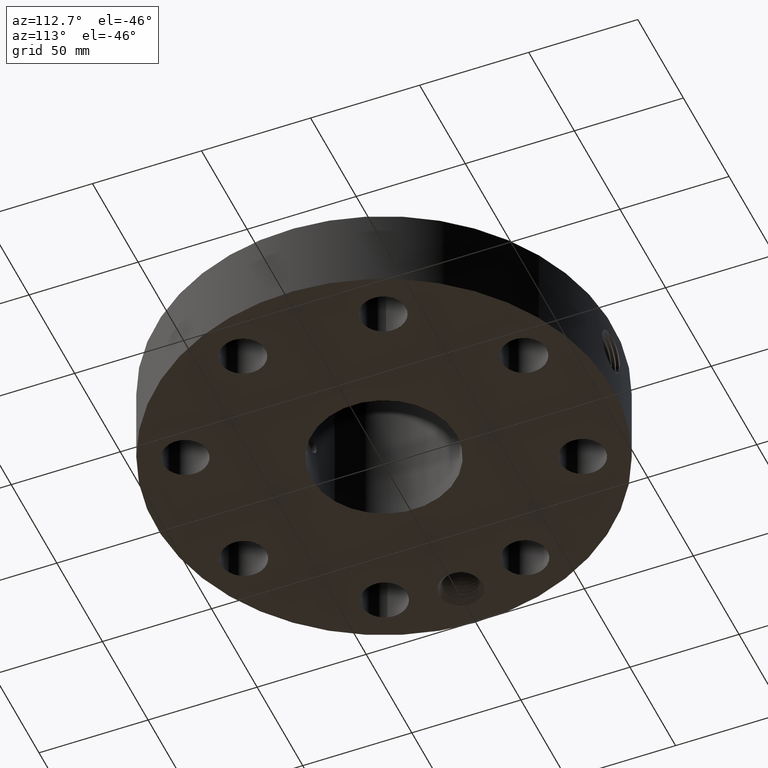
[diagram: clean part render]
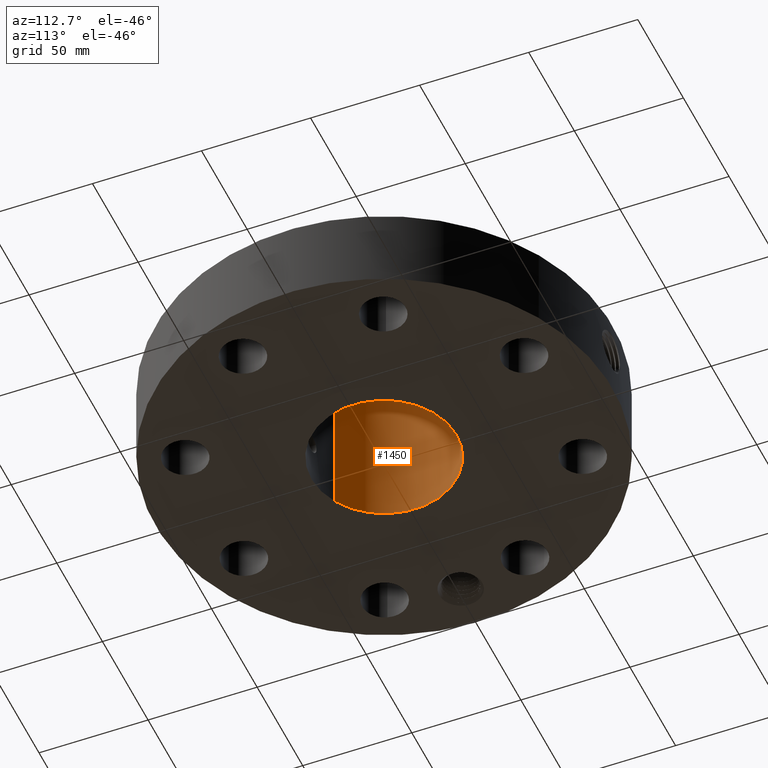
[diagram: same view with one face highlighted and labeled with its STEP entity id]
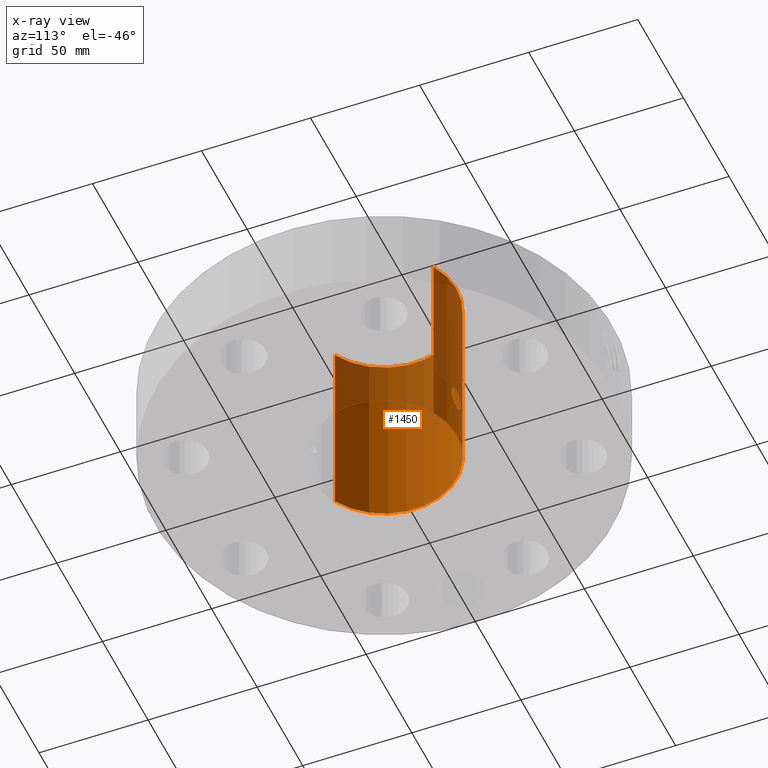
[diagram: x-ray of the same camera — body ghosted, the highlighted face saturated]
A machine part, auxiliary view. The second image highlights one B-rep face of the part: STEP entity #1450.
The next image is the same camera in x-ray: the body ghosted, the highlighted face saturated — about 35% of this face is hidden behind the body in this view.
In plain terms, the highlighted cylindrical surface (partial cylindrical patch) has radius 33.3248 mm, axis along (0, 0, -1).
Its self-contained STEP definition (entity closure, byte-faithful):
#251=AXIS2_PLACEMENT_3D('Circle Axis2P3D',#249,#250,$) ;
#1327=AXIS2_PLACEMENT_3D('Cylinder Axis2P3D',#1324,#1325,#1326) ;
#1399=AXIS2_PLACEMENT_3D('Circle Axis2P3D',#1397,#1398,$) ;
#244=CARTESIAN_POINT('Vertex',(0.629006306651,1.1513883212,0.0600000000002)) ;
#246=CARTESIAN_POINT('Vertex',(-0.629006306651,-1.1513883212,0.0600000000002)) ;
#249=CARTESIAN_POINT('Axis2P3D Location',(0.,0.,0.0600000000002)) ;
#1324=CARTESIAN_POINT('Axis2P3D Location',(0.,0.,1.81000000001)) ;
#1333=CARTESIAN_POINT('Vertex',(0.629006306651,1.1513883212,3.56000000001)) ;
#1335=CARTESIAN_POINT('Vertex',(-0.629006306651,-1.1513883212,3.56000000001)) ;
#1338=CARTESIAN_POINT('Line Origine',(0.629006306651,1.1513883212,1.81000000001)) ;
#1343=CARTESIAN_POINT('Line Origine',(-0.629006306651,-1.1513883212,1.81000000001)) ;
#1397=CARTESIAN_POINT('Axis2P3D Location',(0.,0.,3.56000000001)) ;
#1409=CARTESIAN_POINT('Control Point',(0.16674068676,1.3013614192,1.03109085234)) ;
#1410=CARTESIAN_POINT('Control Point',(0.155854090366,1.30275629578,1.05101863337)) ;
#1411=CARTESIAN_POINT('Control Point',(0.141998251544,1.30441590584,1.06930575102)) ;
#1412=CARTESIAN_POINT('Control Point',(0.125495833428,1.30617306159,1.08537694589)) ;
#1413=CARTESIAN_POINT('Control Point',(0.0789659109696,1.31022969843,1.11872717991)) ;
#1414=CARTESIAN_POINT('Control Point',(0.0227116709111,1.31249113031,1.1333278499)) ;
#1415=CARTESIAN_POINT('Control Point',(-0.0125163085587,1.31264129171,1.13425774414)) ;
#1416=CARTESIAN_POINT('Control Point',(-0.0865714824942,1.31024752775,1.11913770544)) ;
#1417=CARTESIAN_POINT('Control Point',(-0.145860306458,1.3043975898,1.07149476751)) ;
#1418=CARTESIAN_POINT('Control Point',(-0.170291354138,1.30102131544,1.0378722166)) ;
#1419=CARTESIAN_POINT('Control Point',(-0.193186261976,1.29771600406,0.977199958409)) ;
#1420=CARTESIAN_POINT('Control Point',(-0.190308363571,1.29811934656,0.913761782618)) ;
#1421=CARTESIAN_POINT('Control Point',(-0.185714093268,1.29881219227,0.890868149216)) ;
#1422=CARTESIAN_POINT('Control Point',(-0.177744038941,1.29995158296,0.869050648734)) ;
#1423=CARTESIAN_POINT('Control Point',(-0.16674068676,1.3013614192,0.848909147669)) ;
#1424=CARTESIAN_POINT('Vertex',(0.16674068676,1.3013614192,1.03109085234)) ;
#1426=CARTESIAN_POINT('Vertex',(-0.16674068676,1.3013614192,0.848909147669)) ;
#1430=CARTESIAN_POINT('Control Point',(-0.16674068676,1.3013614192,0.848909147669)) ;
#1431=CARTESIAN_POINT('Control Point',(-0.155854090361,1.30275629578,0.82898136663)) ;
#1432=CARTESIAN_POINT('Control Point',(-0.141998251531,1.30441590584,0.81069424897)) ;
#1433=CARTESIAN_POINT('Control Point',(-0.125495833445,1.30617306159,0.794623054127)) ;
#1434=CARTESIAN_POINT('Control Point',(-0.0789659109802,1.31022969843,0.761272820105)) ;
#1435=CARTESIAN_POINT('Control Point',(-0.0227116709128,1.31249113031,0.746672150112)) ;
#1436=CARTESIAN_POINT('Control Point',(0.0125163085635,1.31264129171,0.745742255865)) ;
#1437=CARTESIAN_POINT('Control Point',(0.0865714825119,1.31024752775,0.760862294574)) ;
#1438=CARTESIAN_POINT('Control Point',(0.145860306483,1.3043975898,0.808505232518)) ;
#1439=CARTESIAN_POINT('Control Point',(0.170291354128,1.30102131544,0.842127783376)) ;
#1440=CARTESIAN_POINT('Control Point',(0.193186261977,1.29771600406,0.902800041585)) ;
#1441=CARTESIAN_POINT('Control Point',(0.190308363571,1.29811934656,0.96623821739)) ;
#1442=CARTESIAN_POINT('Control Point',(0.185714093268,1.29881219227,0.989131850792)) ;
#1443=CARTESIAN_POINT('Control Point',(0.177744038941,1.29995158296,1.01094935127)) ;
#1444=CARTESIAN_POINT('Control Point',(0.16674068676,1.3013614192,1.03109085234)) ;
#250=DIRECTION('Axis2P3D Direction',(0.,0.,-0.0393700787402)) ;
#1325=DIRECTION('Axis2P3D Direction',(0.,0.,-0.0393700787402)) ;
#1326=DIRECTION('Axis2P3D XDirection',(-0.0188750212049,-0.0345504945626,0.)) ;
#1339=DIRECTION('Vector Direction',(0.,0.,-0.0393700787402)) ;
#1344=DIRECTION('Vector Direction',(0.,0.,-0.0393700787402)) ;
#1398=DIRECTION('Axis2P3D Direction',(0.,0.,-0.0393700787402)) ;
#1340=VECTOR('Line Direction',#1339,0.0393700787402) ;
#1345=VECTOR('Line Direction',#1344,0.0393700787402) ;
#1403=ORIENTED_EDGE('',*,*,#1401,.F.) ;
#1404=ORIENTED_EDGE('',*,*,#1347,.T.) ;
#1405=ORIENTED_EDGE('',*,*,#253,.T.) ;
#1406=ORIENTED_EDGE('',*,*,#1342,.F.) ;
#1447=ORIENTED_EDGE('',*,*,#1428,.F.) ;
#1448=ORIENTED_EDGE('',*,*,#1445,.F.) ;
#1449=FACE_BOUND('',#1446,.T.) ;
#1450=ADVANCED_FACE('PartBody',(#1407,#1449),#1328,.F.) ;
#1408=B_SPLINE_CURVE_WITH_KNOTS('',5,(#1409,#1410,#1411,#1412,#1413,#1414,#1415,#1416,#1417,#1418,#1419,#1420,#1421,#1422,#1423),.UNSPECIFIED.,.F.,.U.,(6,3,3,3,6),(0.,4.08608608096,10.1941220468,17.339159372,21.4690676158),.UNSPECIFIED.) ;
#1429=B_SPLINE_CURVE_WITH_KNOTS('',5,(#1430,#1431,#1432,#1433,#1434,#1435,#1436,#1437,#1438,#1439,#1440,#1441,#1442,#1443,#1444),.UNSPECIFIED.,.F.,.U.,(6,3,3,3,6),(0.,4.0860860829,10.1941220485,17.3391593763,21.46906762),.UNSPECIFIED.) ;
#252=CIRCLE('generated circle',#251,1.31200000001) ;
#1400=CIRCLE('generated circle',#1399,1.31200000001) ;
#1328=CYLINDRICAL_SURFACE('generated cylinder',#1327,1.31200000001) ;
#253=EDGE_CURVE('',#247,#245,#252,.T.) ;
#1342=EDGE_CURVE('',#1334,#245,#1341,.T.) ;
#1347=EDGE_CURVE('',#1336,#247,#1346,.T.) ;
#1401=EDGE_CURVE('',#1336,#1334,#1400,.T.) ;
#1428=EDGE_CURVE('',#1425,#1427,#1408,.T.) ;
#1445=EDGE_CURVE('',#1427,#1425,#1429,.T.) ;
#1402=EDGE_LOOP('',(#1403,#1404,#1405,#1406)) ;
#1446=EDGE_LOOP('',(#1447,#1448)) ;
#1407=FACE_OUTER_BOUND('',#1402,.T.) ;
#1341=LINE('Line',#1338,#1340) ;
#1346=LINE('Line',#1343,#1345) ;
#245=VERTEX_POINT('',#244) ;
#247=VERTEX_POINT('',#246) ;
#1334=VERTEX_POINT('',#1333) ;
#1336=VERTEX_POINT('',#1335) ;
#1425=VERTEX_POINT('',#1424) ;
#1427=VERTEX_POINT('',#1426) ;